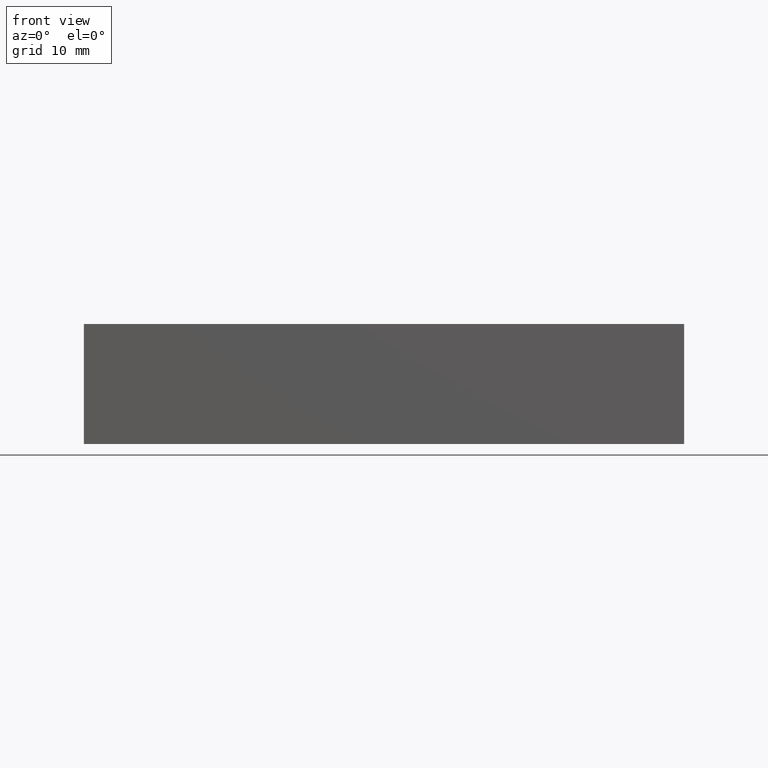
[diagram: clean part render]
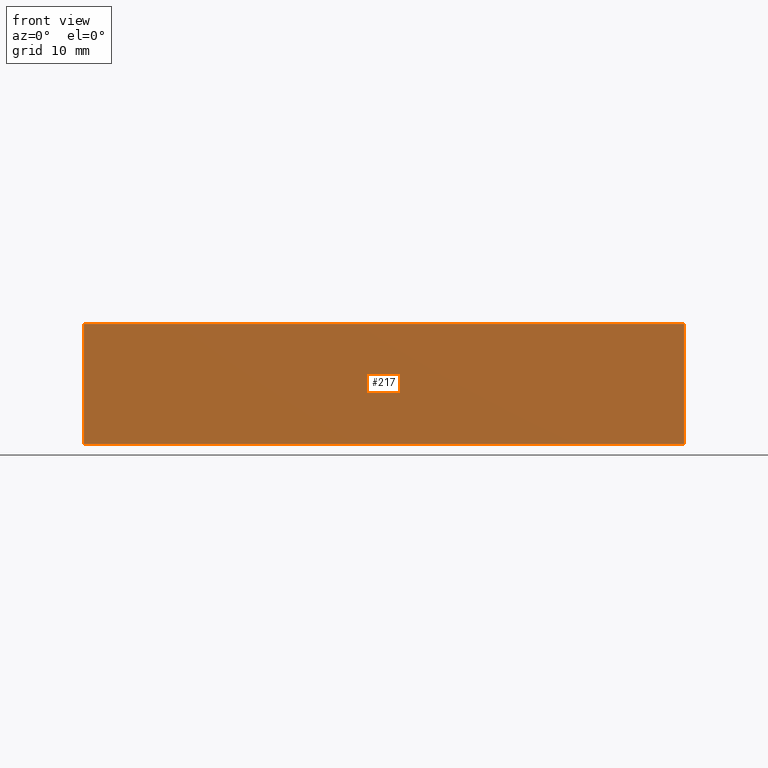
[diagram: same view with one face highlighted and labeled with its STEP entity id]
A machine part, front view. The second image highlights one B-rep face of the part: STEP entity #217.
In plain terms, the highlighted planar face has unit normal (0, 1, -0).
Its self-contained STEP definition (entity closure, byte-faithful):
#43 = CARTESIAN_POINT ( 'NONE',  ( 0.0000000000000000000, 0.0000000000000000000, -6.000000000000000000 ) ) ;
#66 = ORIENTED_EDGE ( 'NONE', *, *, #439, .F. ) ;
#123 = CARTESIAN_POINT ( 'NONE',  ( 0.0000000000000000000, 0.0000000000000000000, 6.000000000000000000 ) ) ;
#138 = VECTOR ( 'NONE', #214, 1000.000000000000000 ) ;
#139 = LINE ( 'NONE', #224, #138 ) ;
#146 = VECTOR ( 'NONE', #165, 1000.000000000000000 ) ;
#150 = LINE ( 'NONE', #161, #146 ) ;
#154 = LINE ( 'NONE', #281, #156 ) ;
#156 = VECTOR ( 'NONE', #296, 1000.000000000000000 ) ;
#161 = CARTESIAN_POINT ( 'NONE',  ( 0.0000000000000000000, 0.0000000000000000000, 6.000000000000000000 ) ) ;
#164 = LINE ( 'NONE', #445, #167 ) ;
#165 = DIRECTION ( 'NONE',  ( -0.0000000000000000000, -0.0000000000000000000, -1.000000000000000000 ) ) ;
#167 = VECTOR ( 'NONE', #324, 1000.000000000000000 ) ;
#187 = VERTEX_POINT ( 'NONE', #398 ) ;
#203 = FACE_OUTER_BOUND ( 'NONE', #347, .T. ) ;
#214 = DIRECTION ( 'NONE',  ( 1.000000000000000000, -1.161219106975661900E-017, -0.0000000000000000000 ) ) ;
#217 = ADVANCED_FACE ( 'NONE', ( #203 ), #300, .F. ) ;
#224 = CARTESIAN_POINT ( 'NONE',  ( 60.00000000000000000, -6.967314641853971000E-016, 6.000000000000000000 ) ) ;
#241 = VERTEX_POINT ( 'NONE', #43 ) ;
#270 = DIRECTION ( 'NONE',  ( -1.000000000000000000, 1.161219106975661700E-017, 0.0000000000000000000 ) ) ;
#274 = AXIS2_PLACEMENT_3D ( 'NONE', #512, #298, #270 ) ;
#281 = CARTESIAN_POINT ( 'NONE',  ( 60.00000000000000000, -6.967314641853971000E-016, 6.000000000000000000 ) ) ;
#296 = DIRECTION ( 'NONE',  ( -0.0000000000000000000, -0.0000000000000000000, -1.000000000000000000 ) ) ;
#298 = DIRECTION ( 'NONE',  ( 1.161219106975661700E-017, 1.000000000000000000, -0.0000000000000000000 ) ) ;
#300 = PLANE ( 'NONE',  #274 ) ;
#324 = DIRECTION ( 'NONE',  ( 1.000000000000000000, -1.161219106975661900E-017, -0.0000000000000000000 ) ) ;
#347 = EDGE_LOOP ( 'NONE', ( #452, #473, #66, #422 ) ) ;
#383 = CARTESIAN_POINT ( 'NONE',  ( 60.00000000000000000, -6.967314641853971000E-016, 6.000000000000000000 ) ) ;
#398 = CARTESIAN_POINT ( 'NONE',  ( 60.00000000000000000, -6.967314641853971000E-016, -6.000000000000000000 ) ) ;
#400 = EDGE_CURVE ( 'NONE', #241, #187, #164, .T. ) ;
#413 = EDGE_CURVE ( 'NONE', #436, #187, #154, .T. ) ;
#422 = ORIENTED_EDGE ( 'NONE', *, *, #463, .T. ) ;
#436 = VERTEX_POINT ( 'NONE', #383 ) ;
#439 = EDGE_CURVE ( 'NONE', #466, #436, #139, .T. ) ;
#445 = CARTESIAN_POINT ( 'NONE',  ( 60.00000000000000000, -6.967314641853971000E-016, -6.000000000000000000 ) ) ;
#452 = ORIENTED_EDGE ( 'NONE', *, *, #400, .T. ) ;
#463 = EDGE_CURVE ( 'NONE', #466, #241, #150, .T. ) ;
#466 = VERTEX_POINT ( 'NONE', #123 ) ;
#473 = ORIENTED_EDGE ( 'NONE', *, *, #413, .F. ) ;
#512 = CARTESIAN_POINT ( 'NONE',  ( 60.00000000000000000, -6.967314641853971000E-016, 6.000000000000000000 ) ) ;